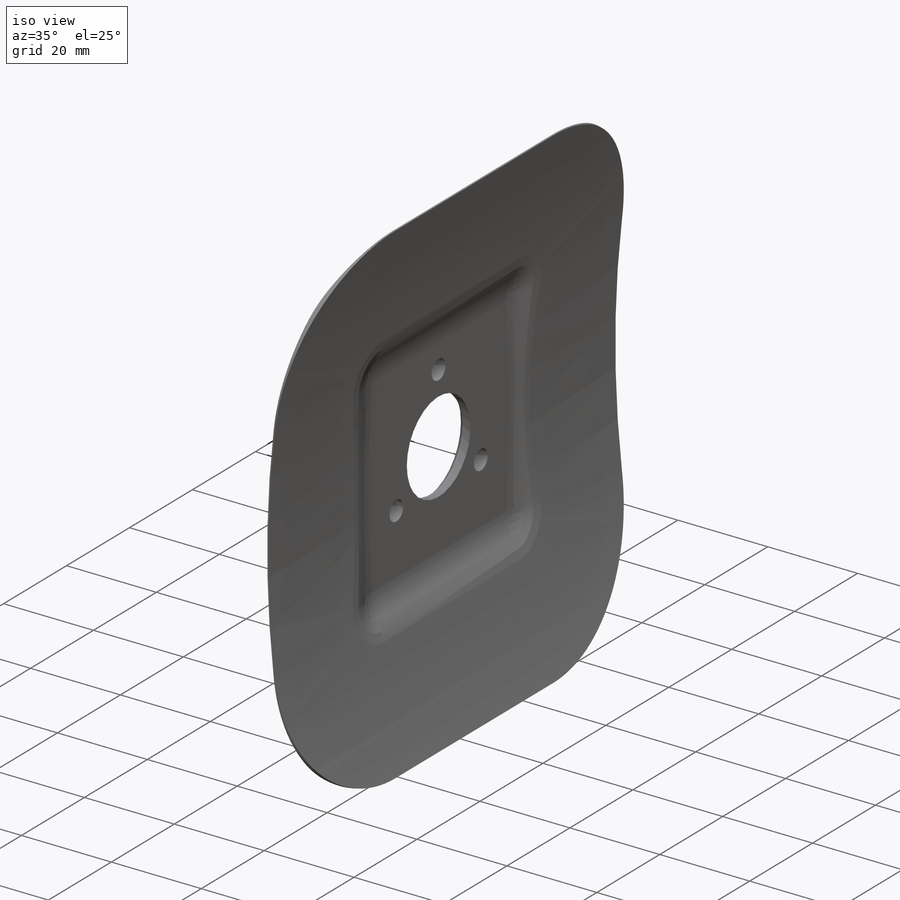
[diagram: iso view]
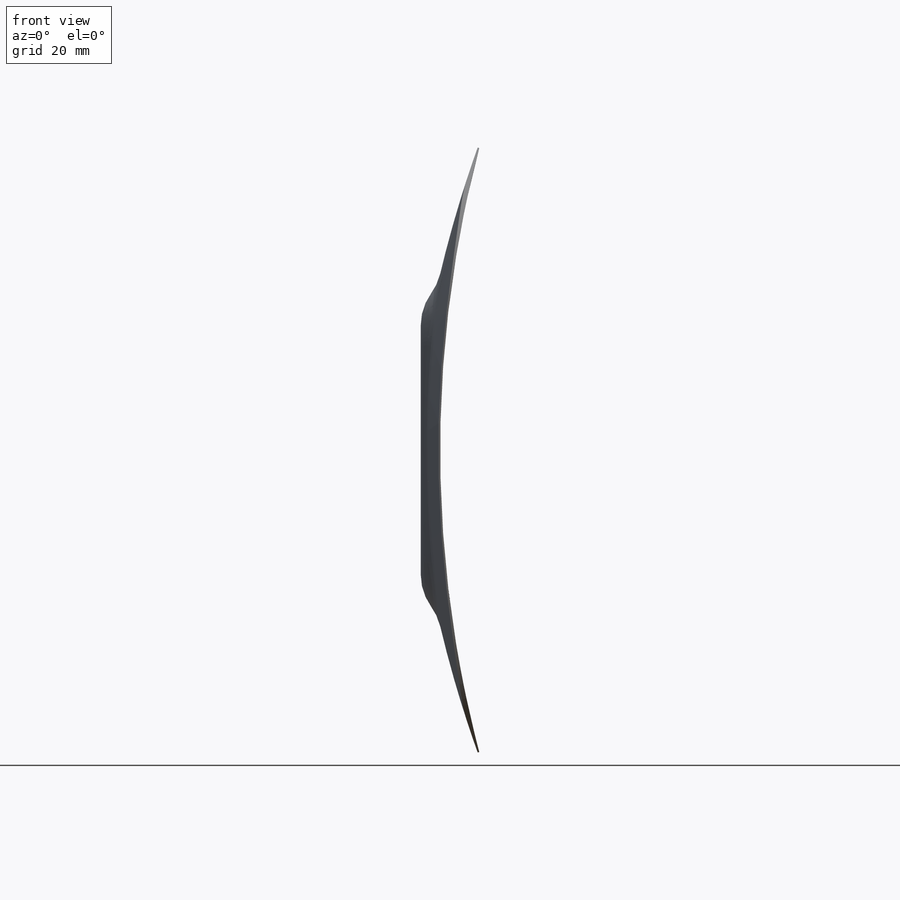
[diagram: front view]
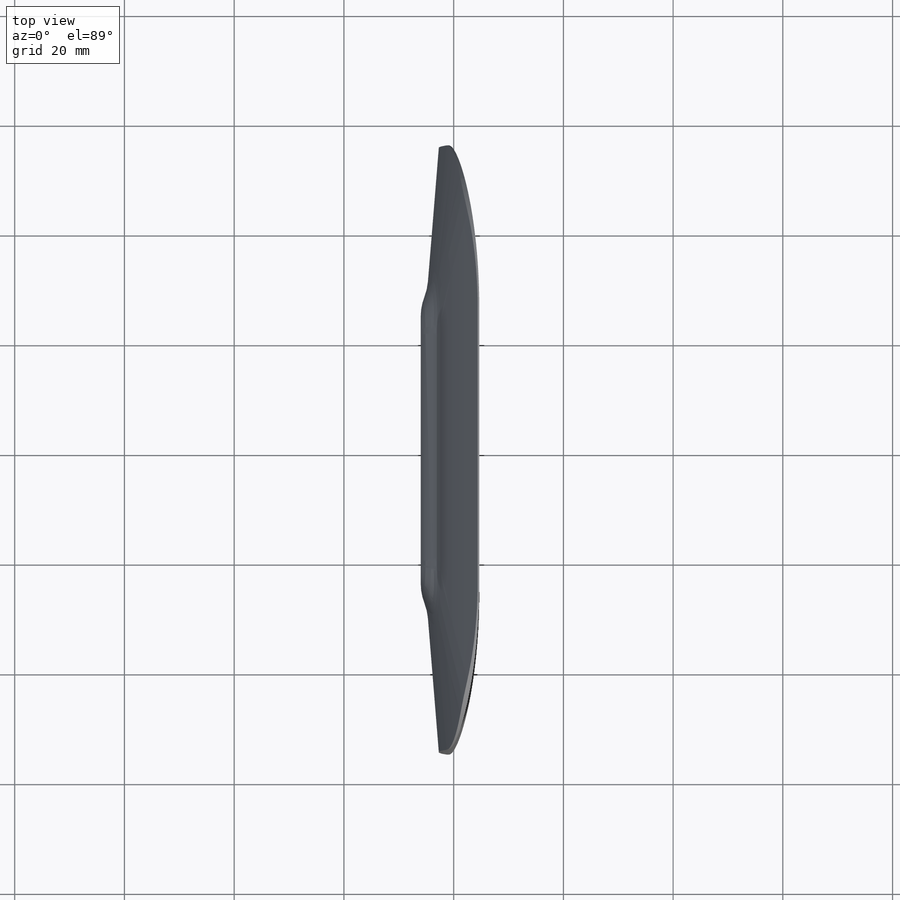
[diagram: top view]
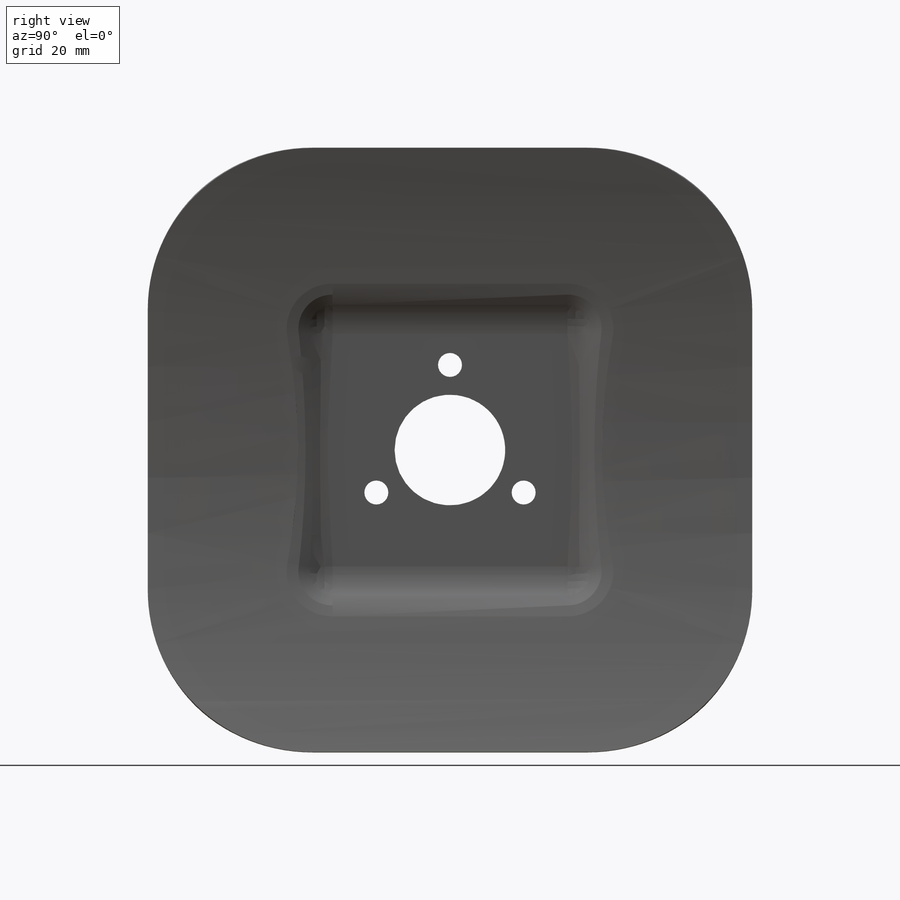
[diagram: right view]
SOLIDWORKS PART (.sldprt)
format: sldprt  version: not decoded by parser v0  size: 1,152,512 bytes
history: native  units: mm
features: sketch x21, fillet x8, cut_extrude x7, mirror x4, material x1, extrude x1, plane x1, revolve x1, hole x1, chamfer x1 (+11 scaffold rows collapsed)
feature tree (57):
  scaffold x11  (default folders/planes/origin — collapsed)
  material  "ladder carbon corrected"
  sketch  "Sketch1"  dims[D1=65.0mm D2=75.0mm]
  extrude  "Extrude1"  Depth=6mm
  sketch  "Sketch2"  dims[c1.D1=15.0mm c2.D1=45.0deg]
  cut_extrude  "Extrude2"  [1 undecoded]
  mirror  "Mirror1"
  sketch  "Sketch3"  dims[c1.D1=~21.213203mm c2.D1=45.0deg]
  cut_extrude  "Extrude3"  [1 undecoded]
  mirror  "Mirror2"
  sketch  "Sketch4"  dims[D1=2.8mm]
  cut_extrude  "Extrude4"  Depth=2.8mm
  sketch  "Sketch5"  dims[D1=216.2mm]
  cut_extrude  "Extrude5"  [1 undecoded]
  sketch  "profile"  dims[D1=2.6mm D2=0.3mm D3=29.0mm D4=~26.447702mm]
  plane  "Plane1"
  sketch  "circle"
  sketch  "center axis"
  revolve  "Revolve1"  Angle=29.5deg
  sketch  "Sketch9"
  cut_extrude  "Extrude6"  Depth=2.8mm
  sketch  "Sketch10"  dims[D1=0.3mm]
  cut_extrude  "Extrude7"  [1 undecoded]
  mirror  "Mirror3"
  fillet  "Fillet1"  Radius=60mm
  fillet  "Fillet2"  Radius=30mm
  mirror  "Mirror5"
  fillet  "Fillet3"  Radius=10mm
  fillet  "Fillet4"  Radius=10mm
  fillet  "Fillet5"  Radius=10mm
  fillet  "Fillet6"  Radius=10mm
  fillet  "Fillet7"  Radius=10mm
  fillet  "Fillet8"  Radius=10mm
  sketch  "Sketch12"  dims[D1=62.0mm D2=57.0mm]
  cut_extrude  "Extrude9"  [1 undecoded]
  sketch  "Sketch13"  dims[D1=30.0mm D2=35.0mm]
  sketch  "Sketch14"  dims[c1.D2=31.0mm c1.D1=~68.071068mm c2.D2=~63.071068mm c2.D1=~24.465753mm c3.D1=120.0deg]
  hole  "11/64 (0.17188) Diameter Hole1"  Diameter=4.365752mm Depth=3.231785mm
  sketch  "3DSketch1"
  sketch  "Sketch15"  dims[hole-wizard template sketch: 59 standard entries collapsed; hole parameters kept: c18.Thru Hole Dia.=~4.365752mm c18.Thru Hole Depth=~3.231785mm]
  sketch  "Sketch16"  dims[D1=48.0mm]
  chamfer  "Chamfer1"  Distance=1mm Angle=45deg
  sketch  "Ply Locating Tab"  dims[D1=6.0mm D2=10.0mm]
  sketch  "Ply 6,7,8"  dims[D1=10.0mm]
  sketch  "Ply 4,5"  dims[D1=10.0mm]
  sketch  "Ply 2,3"  dims[D1=20.0mm]
  sketch  "Ply 1"  dims[c1.D1=3.0mm c1.D2=3.0mm c1.D3=3.0mm c1.D4=3.0mm c2.D1=50.0mm]
decode coverage: 31 of 44 modeling features carry decoded parameters
note: ~ marks probable driven/reference dimensions
note: 5 parameter values undecoded
summary: no parameter record found for 5 features
note: suppression state not decoded; provenance and decode notes live in map.json
